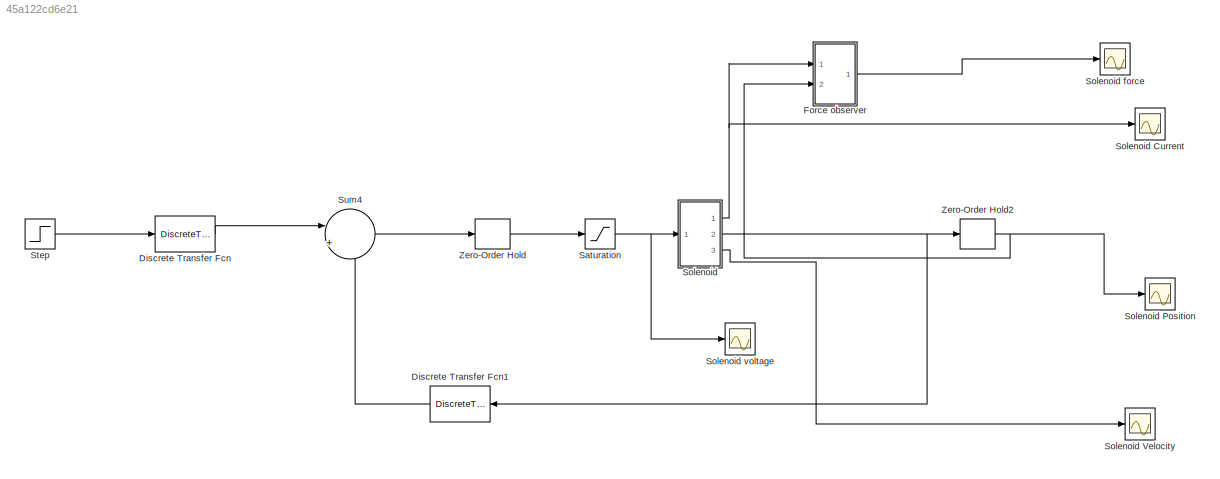
MODEL slx_45a122cd6e21
KIND model
CONFIG AbsTol = auto
CONFIG EnableMultiTasking = off
CONFIG FixedStep = auto
CONFIG MaxStep = auto
CONFIG MinStep = auto
CONFIG RelTol = 1e-3
CONFIG SampleTimeConstraint = Unconstrained
CONFIG Solver = VariableStepAuto
CONFIG SolverName = VariableStepAuto
CONFIG StartTime = 0.0
CONFIG StopTime = 20
BLOCK [DiscreteTransferFcn] Discrete Transfer Fcn
  Denominator = rd
  InputPortMap = u0
  Numerator = td
  Ports = [1, 1]
  SampleTime = Ts
BLOCK [DiscreteTransferFcn] Discrete Transfer Fcn1
  Denominator = rd
  InputPortMap = u0
  Numerator = sd
  Ports = [1, 1]
  SampleTime = Ts
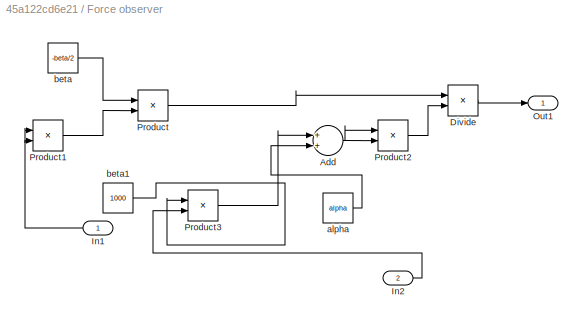
BLOCK [SubSystem] Force observer
  Ports = [2, 1]
  RequestExecContextInheritance = off
BLOCK [Sum] Force observer/Add
  InputSameDT = off
  OutDataTypeStr = Inherit: Inherit via internal rule
  Ports = [2, 1]
  SaturateOnIntegerOverflow = off
BLOCK [Product] Force observer/Divide
  InputSameDT = off
  Inputs = */
  OutDataTypeStr = Inherit: Inherit via internal rule
  Ports = [2, 1]
  RndMeth = Floor
  SaturateOnIntegerOverflow = off
BLOCK [Inport] Force observer/In1
  IconDisplay = Port number
BLOCK [Inport] Force observer/In2
  IconDisplay = Port number
  Port = 2
BLOCK [Outport] Force observer/Out1
  IconDisplay = Port number
BLOCK [Product] Force observer/Product
  InputSameDT = off
  OutDataTypeStr = Inherit: Inherit via internal rule
  Ports = [2, 1]
  RndMeth = Floor
  SaturateOnIntegerOverflow = off
BLOCK [Product] Force observer/Product1
  InputSameDT = off
  OutDataTypeStr = Inherit: Inherit via internal rule
  Ports = [2, 1]
  RndMeth = Floor
  SaturateOnIntegerOverflow = off
BLOCK [Product] Force observer/Product2
  InputSameDT = off
  OutDataTypeStr = Inherit: Inherit via internal rule
  Ports = [2, 1]
  RndMeth = Floor
  SaturateOnIntegerOverflow = off
BLOCK [Product] Force observer/Product3
  InputSameDT = off
  OutDataTypeStr = Inherit: Inherit via internal rule
  Ports = [2, 1]
  RndMeth = Floor
  SaturateOnIntegerOverflow = off
BLOCK [Constant] Force observer/alpha
  Value = alpha
BLOCK [Constant] Force observer/beta
  Value = -beta/2
BLOCK [Constant] Force observer/beta1
  Value = 1000
BLOCK [Saturate] Saturation
  InputPortMap = u0
  LowerLimit = -5
  Ports = [1, 1]
  UpperLimit = 5
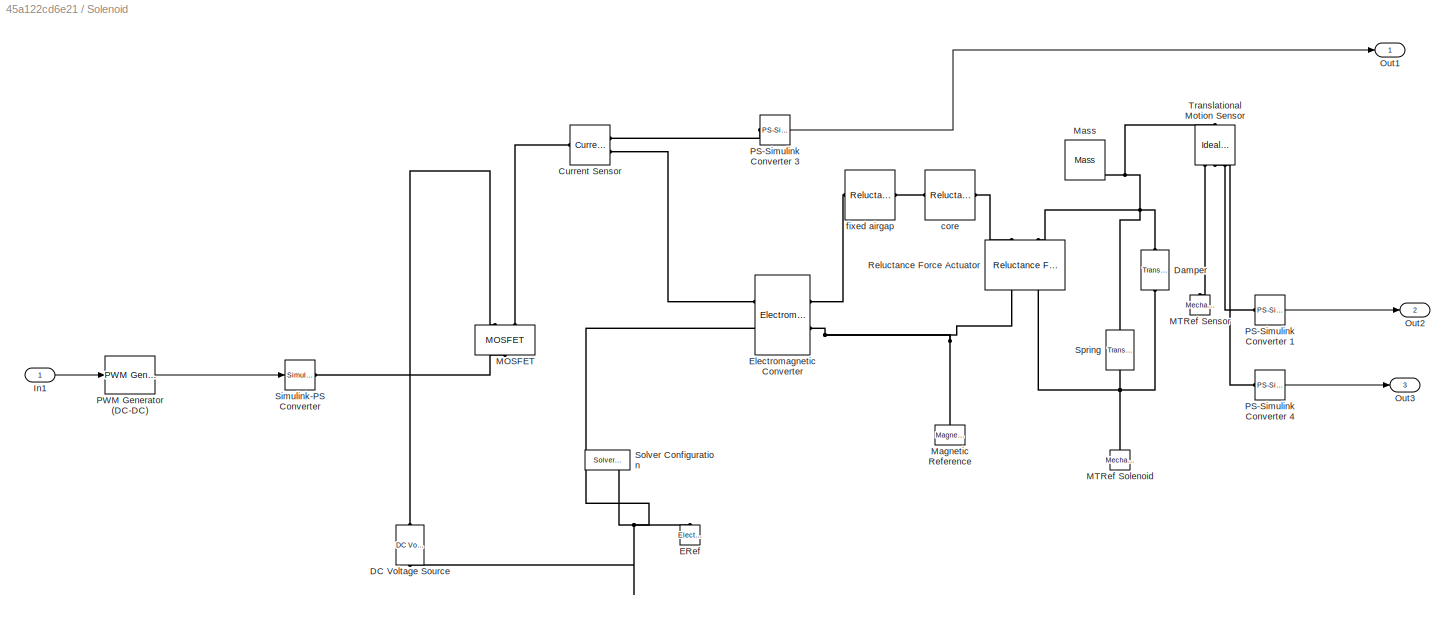
BLOCK [SubSystem] Solenoid
  Ports = [1, 3]
  RequestExecContextInheritance = off
BLOCK [Scope] Solenoid Current
  Floating = off
  NumInputPorts = 1
  Ports = [1]
  ScopeSpecificationString = Simulink.scopes.TimeScopeBlockCfg('CurrentConfiguration', extmgr.ConfigurationSet(extmgr.Configuration('Core','General UI',true,'FigureColor',[1 1 1]),extmgr.Configuration('Core','Source UI',true),extmgr.Configuration('Sources','WiredSimulink',true,'DataLoggingSaveFormat','StructureWithTime','DataLoggingDecimation','1','DataLoggingVariableName','ScopeData1'),extmgr.Configuration('Visuals','Time Do...<+3090ch>
  Tag = PublishScope
BLOCK [Scope] Solenoid Position
  Floating = off
  NumInputPorts = 1
  Ports = [1]
  ScopeSpecificationString = Simulink.scopes.TimeScopeBlockCfg('CurrentConfiguration', extmgr.ConfigurationSet(extmgr.Configuration('Core','General UI',true,'FigureColor',[1 1 1]),extmgr.Configuration('Core','Source UI',true),extmgr.Configuration('Sources','WiredSimulink',true,'DataLoggingSaveFormat','StructureWithTime','DataLoggingDecimation','1','DataLoggingVariableName','ScopeData2'),extmgr.Configuration('Visuals','Time Do...<+3072ch>
  Tag = PublishScope
BLOCK [Scope] Solenoid Velocity
  Floating = off
  NumInputPorts = 1
  Ports = [1]
  ScopeSpecificationString = Simulink.scopes.TimeScopeBlockCfg('CurrentConfiguration', extmgr.ConfigurationSet(extmgr.Configuration('Core','General UI',true,'FigureColor',[0.501960784313725 0.501960784313725 0.501960784313725]),extmgr.Configuration('Core','Source UI',true),extmgr.Configuration('Sources','WiredSimulink',true,'DataLoggingSaveFormat','StructureWithTime','DataLoggingDecimation','1'),extmgr.Configuration('Visuals'...<+2623ch>
  Tag = PublishScope
BLOCK [Scope] Solenoid force
  Floating = off
  NumInputPorts = 1
  Ports = [1]
  ScopeSpecificationString = Simulink.scopes.TimeScopeBlockCfg('CurrentConfiguration', extmgr.ConfigurationSet(extmgr.Configuration('Core','General UI',true,'FigureColor',[1 1 1]),extmgr.Configuration('Core','Source UI',true),extmgr.Configuration('Sources','WiredSimulink',true,'DataLoggingSaveFormat','StructureWithTime','DataLoggingDecimation','1','DataLoggingVariableName','ScopeData2'),extmgr.Configuration('Visuals','Time Do...<+3056ch>
  Tag = PublishScope
BLOCK [Scope] Solenoid voltage
  Floating = off
  NumInputPorts = 1
  Ports = [1]
  ScopeSpecificationString = Simulink.scopes.TimeScopeBlockCfg('CurrentConfiguration', extmgr.ConfigurationSet(extmgr.Configuration('Core','General UI',true,'FigureColor',[1 1 1]),extmgr.Configuration('Core','Source UI',true),extmgr.Configuration('Sources','WiredSimulink',true,'DataLoggingSaveFormat','StructureWithTime','DataLoggingDecimation','1','DataLoggingVariableName','ScopeData1'),extmgr.Configuration('Visuals','Time Do...<+2753ch>
  Tag = PublishScope
BLOCK [Reference] Solenoid/Current Sensor  REF=fl_lib/Electrical/Electrical Sensors/Current Sensor
  Ports = [0, 0, 0, 0, 0, 1, 2]
  SourceBlock = fl_lib/Electrical/Electrical Sensors/Current Sensor
  SourceProductBaseCode = SS
  SourceProductName = Simscape
  SourceType = Current Sensor
BLOCK [Reference] Solenoid/DC Voltage Source  REF=fl_lib/Electrical/Electrical Sources/DC Voltage Source
  Ports = [0, 0, 0, 0, 0, 1, 1]
  SourceBlock = fl_lib/Electrical/Electrical Sources/DC Voltage Source
  SourceProductBaseCode = SS
  SourceProductName = Simscape
  SourceType = DC Voltage Source
BLOCK [Reference] Solenoid/Damper  REF=fl_lib/Mechanical/Translational
Elements/Translational Damper
  Ports = [0, 0, 0, 0, 0, 1, 1]
  SourceBlock = fl_lib/Mechanical/Translational\nElements/Translational Damper
  SourceProductBaseCode = SS
  SourceProductName = Simscape
  SourceType = Translational Damper
BLOCK [Reference] Solenoid/ERef  REF=fl_lib/Electrical/Electrical Elements/Electrical Reference
  Ports = [0, 0, 0, 0, 0, 1]
  SourceBlock = fl_lib/Electrical/Electrical Elements/Electrical Reference
  SourceProductBaseCode = SS
  SourceProductName = Simscape
  SourceType = Electrical Reference
BLOCK [Reference] Solenoid/Electromagnetic Converter  REF=fl_lib/Magnetic/Magnetic Elements/Electromagnetic
Converter
  Ports = [0, 0, 0, 0, 0, 2, 2]
  SourceBlock = fl_lib/Magnetic/Magnetic Elements/Electromagnetic\nConverter
  SourceProductBaseCode = SS
  SourceProductName = Simscape
  SourceType = Electromagnetic\nConverter
BLOCK [Inport] Solenoid/In1
  IconDisplay = Port number
BLOCK [Reference] Solenoid/MOSFET  REF=pe_lib/Semiconductors/Fundamental
Components/MOSFET
  Ports = [0, 0, 0, 0, 0, 1, 2]
  SourceBlock = pe_lib/Semiconductors/Fundamental\nComponents/MOSFET
  SourceProductBaseCode = PS
  SourceProductName = Simscape Power Systems
  SourceType = MOSFET
BLOCK [Reference] Solenoid/MTRef Sensor  REF=fl_lib/Mechanical/Translational
Elements/Mechanical
Translational
Reference
  Ports = [0, 0, 0, 0, 0, 1]
  SourceBlock = fl_lib/Mechanical/Translational\nElements/Mechanical\nTranslational\nReference
  SourceProductBaseCode = SS
  SourceProductName = Simscape
  SourceType = Mechanical\nTranslational\nReference
BLOCK [Reference] Solenoid/MTRef Solenoid  REF=fl_lib/Mechanical/Translational
Elements/Mechanical
Translational
Reference
  Ports = [0, 0, 0, 0, 0, 1]
  SourceBlock = fl_lib/Mechanical/Translational\nElements/Mechanical\nTranslational\nReference
  SourceProductBaseCode = SS
  SourceProductName = Simscape
  SourceType = Mechanical\nTranslational\nReference
BLOCK [Reference] Solenoid/Magnetic Reference  REF=fl_lib/Magnetic/Magnetic Elements/Magnetic Reference
  Ports = [0, 0, 0, 0, 0, 1]
  SourceBlock = fl_lib/Magnetic/Magnetic Elements/Magnetic Reference
  SourceProductBaseCode = SS
  SourceProductName = Simscape
  SourceType = Magnetic Reference
BLOCK [Reference] Solenoid/Mass  REF=fl_lib/Mechanical/Translational
Elements/Mass
  Ports = [0, 0, 0, 0, 0, 1]
  SourceBlock = fl_lib/Mechanical/Translational\nElements/Mass
  SourceProductBaseCode = SS
  SourceProductName = Simscape
  SourceType = Mass
BLOCK [Outport] Solenoid/Out1
  IconDisplay = Port number
BLOCK [Outport] Solenoid/Out2
  IconDisplay = Port number
  Port = 2
BLOCK [Outport] Solenoid/Out3
  IconDisplay = Port number
  Port = 3
BLOCK [Reference] Solenoid/PS-Simulink Converter 1  REF=nesl_utility/PS-Simulink
Converter
  Ports = [0, 1, 0, 0, 0, 1]
  SourceBlock = nesl_utility/PS-Simulink\nConverter
  SourceProductBaseCode = SS
  SourceProductName = Simscape
  SourceType = PS-Simulink\nConverter
BLOCK [Reference] Solenoid/PS-Simulink Converter 3  REF=nesl_utility/PS-Simulink
Converter
  Ports = [0, 1, 0, 0, 0, 1]
  SourceBlock = nesl_utility/PS-Simulink\nConverter
  SourceProductBaseCode = SS
  SourceProductName = Simscape
  SourceType = PS-Simulink\nConverter
BLOCK [Reference] Solenoid/PS-Simulink Converter 4  REF=nesl_utility/PS-Simulink
Converter
  Ports = [0, 1, 0, 0, 0, 1]
  SourceBlock = nesl_utility/PS-Simulink\nConverter
  SourceProductBaseCode = SS
  SourceProductName = Simscape
  SourceType = PS-Simulink\nConverter
BLOCK [Reference] Solenoid/PWM Generator (DC-DC)  REF=powerlib_meascontrol/Pulse & Signal
Generators/PWM Generator
(DC-DC)
  Ports = [1, 1]
  SourceBlock = powerlib_meascontrol/Pulse & Signal\nGenerators/PWM Generator\n(DC-DC)
  SourceProductBaseCode = PS
  SourceProductName = Simscape Power Systems
  SourceType = PWM Generator (DC-DC)
BLOCK [Reference] Solenoid/Reluctance Force Actuator  REF=fl_lib/Magnetic/Magnetic Elements/Reluctance Force
Actuator
  Ports = [0, 0, 0, 0, 0, 2, 2]
  SourceBlock = fl_lib/Magnetic/Magnetic Elements/Reluctance Force\nActuator
  SourceProductBaseCode = SS
  SourceProductName = Simscape
  SourceType = Reluctance Force\nActuator
BLOCK [Reference] Solenoid/Simulink-PS Converter  REF=nesl_utility/Simulink-PS
Converter
  Ports = [1, 0, 0, 0, 0, 0, 1]
  SourceBlock = nesl_utility/Simulink-PS\nConverter
  SourceProductBaseCode = SS
  SourceProductName = Simscape
  SourceType = Simulink-PS\nConverter
BLOCK [Reference] Solenoid/Solver Configuration  REF=nesl_utility/Solver
Configuration
  Ports = [0, 0, 0, 0, 0, 0, 1]
  SourceBlock = nesl_utility/Solver\nConfiguration
  SourceProductBaseCode = SS
  SourceProductName = Simscape
  SourceType = Solver\nConfiguration
BLOCK [Reference] Solenoid/Spring  REF=fl_lib/Mechanical/Translational
Elements/Translational Spring
  Ports = [0, 0, 0, 0, 0, 1, 1]
  SourceBlock = fl_lib/Mechanical/Translational\nElements/Translational Spring
  SourceProductBaseCode = SS
  SourceProductName = Simscape
  SourceType = Translational Spring
BLOCK [Reference] Solenoid/Translational Motion Sensor  REF=fl_lib/Mechanical/Mechanical Sensors/Ideal Translational
Motion Sensor
  Ports = [0, 0, 0, 0, 0, 1, 3]
  SourceBlock = fl_lib/Mechanical/Mechanical Sensors/Ideal Translational\nMotion Sensor
  SourceProductBaseCode = SS
  SourceProductName = Simscape
  SourceType = Ideal Translational\nMotion Sensor
BLOCK [Reference] Solenoid/core  REF=fl_lib/Magnetic/Magnetic Elements/Reluctance
  Ports = [0, 0, 0, 0, 0, 1, 1]
  SourceBlock = fl_lib/Magnetic/Magnetic Elements/Reluctance
  SourceProductBaseCode = SS
  SourceProductName = Simscape
  SourceType = Reluctance
BLOCK [Reference] Solenoid/fixed airgap  REF=fl_lib/Magnetic/Magnetic Elements/Reluctance
  Ports = [0, 0, 0, 0, 0, 1, 1]
  SourceBlock = fl_lib/Magnetic/Magnetic Elements/Reluctance
  SourceProductBaseCode = SS
  SourceProductName = Simscape
  SourceType = Reluctance
BLOCK [Step] Step
  After = 0.005
  SampleTime = Ts
BLOCK [Sum] Sum4
  IconShape = round
  InputSameDT = off
  Inputs = |+-
  OutDataTypeStr = Inherit: Inherit via internal rule
  Ports = [2, 1]
  SaturateOnIntegerOverflow = off
BLOCK [ZeroOrderHold] Zero-Order Hold
  SampleTime = Ts
BLOCK [ZeroOrderHold] Zero-Order Hold2
  SampleTime = Ts
LINE Discrete Transfer Fcn1:1 -> Sum4:2
LINE Discrete Transfer Fcn:1 -> Sum4:1
NET Force observer/Add:1 -> Force observer/Product2:1, Force observer/Product2:2
LINE Force observer/Divide:1 -> Force observer/Out1:1
NET Force observer/In1:1 -> Force observer/Product1:1, Force observer/Product1:2
LINE Force observer/In2:1 -> Force observer/Product3:2
LINE Force observer/Product1:1 -> Force observer/Product:2
LINE Force observer/Product2:1 -> Force observer/Divide:2
LINE Force observer/Product3:1 -> Force observer/Add:1
LINE Force observer/Product:1 -> Force observer/Divide:1
LINE Force observer/alpha:1 -> Force observer/Add:2
LINE Force observer/beta1:1 -> Force observer/Product3:1
LINE Force observer/beta:1 -> Force observer/Product:1
LINE Force observer:1 -> Solenoid force:1
NET Saturation:1 -> Solenoid voltage:1, Solenoid:1
LINE Solenoid/In1:1 -> Solenoid/PWM Generator (DC-DC):1
LINE Solenoid/PS-Simulink Converter 1:1 -> Solenoid/Out2:1
LINE Solenoid/PS-Simulink Converter 3:1 -> Solenoid/Out1:1
LINE Solenoid/PS-Simulink Converter 4:1 -> Solenoid/Out3:1
LINE Solenoid/PWM Generator (DC-DC):1 -> Solenoid/Simulink-PS Converter:1
NET Solenoid:1 -> Force observer:1, Solenoid Current:1
NET Solenoid:2 -> Discrete Transfer Fcn1:1, Zero-Order Hold2:1
LINE Solenoid:3 -> Solenoid Velocity:1
LINE Step:1 -> Discrete Transfer Fcn:1
LINE Sum4:1 -> Zero-Order Hold:1
NET Zero-Order Hold2:1 -> Force observer:2, Solenoid Position:1
LINE Zero-Order Hold:1 -> Saturation:1
PLINE Solenoid/Current Sensor:LConn1 -- Solenoid/MOSFET:RConn2
PLINE Solenoid/Current Sensor:RConn1 -- Solenoid/PS-Simulink Converter 3:LConn1
PLINE Solenoid/Current Sensor:RConn2 -- Solenoid/Electromagnetic Converter:LConn1
PLINE Solenoid/DC Voltage Source:LConn1 -- Solenoid/MOSFET:RConn1
PNET net1: Solenoid/DC Voltage Source:RConn1 -- Solenoid/ERef:LConn1 -- Solenoid/Electromagnetic Converter:LConn2 -- Solenoid/Solver Configuration:RConn1
PNET net2: Solenoid/Damper:LConn1 -- Solenoid/Mass:LConn1 -- Solenoid/Reluctance Force Actuator:LConn2 -- Solenoid/Spring:LConn1 -- Solenoid/Translational Motion Sensor:LConn1
PNET net3: Solenoid/Damper:RConn1 -- Solenoid/MTRef Solenoid:LConn1 -- Solenoid/Reluctance Force Actuator:RConn2 -- Solenoid/Spring:RConn1
PLINE Solenoid/Electromagnetic Converter:RConn1 -- Solenoid/fixed airgap:LConn1
PNET net4: Solenoid/Electromagnetic Converter:RConn2 -- Solenoid/Magnetic Reference:LConn1 -- Solenoid/Reluctance Force Actuator:RConn1
PLINE Solenoid/MOSFET:LConn1 -- Solenoid/Simulink-PS Converter:RConn1
PLINE Solenoid/MTRef Sensor:LConn1 -- Solenoid/Translational Motion Sensor:RConn1
PLINE Solenoid/PS-Simulink Converter 1:LConn1 -- Solenoid/Translational Motion Sensor:RConn3
PLINE Solenoid/PS-Simulink Converter 4:LConn1 -- Solenoid/Translational Motion Sensor:RConn2
PLINE Solenoid/Reluctance Force Actuator:LConn1 -- Solenoid/core:RConn1
PLINE Solenoid/core:LConn1 -- Solenoid/fixed airgap:RConn1
note: NET lines group one-source signal fan-out (src -> all destinations, sorted); 1:1 wires keep LINE; PNET lines group multi-terminal physical nets as a canonical sorted terminal list (undirected conserving connections); 2-terminal nets keep the pairwise PLINE form
